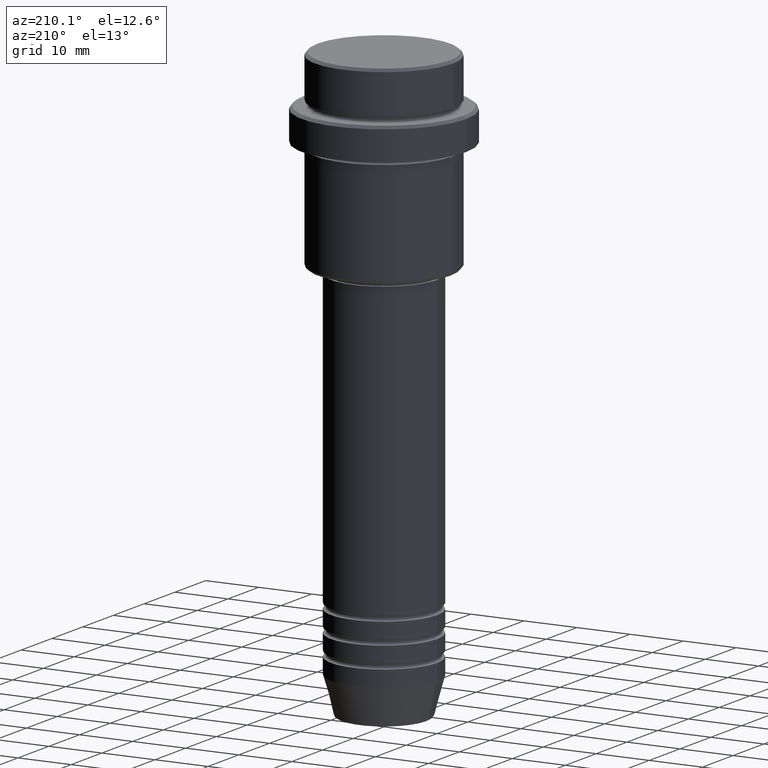
[diagram: clean part render]
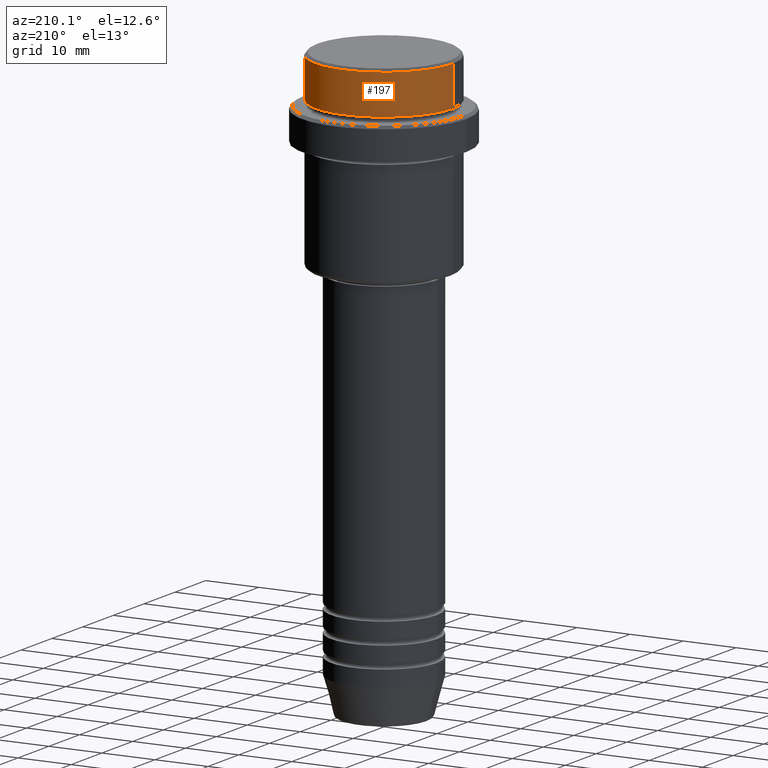
[diagram: same view with one face highlighted and labeled with its STEP entity id]
A machine part, auxiliary view. The second image highlights one B-rep face of the part: STEP entity #197.
In plain terms, the highlighted cylindrical surface (partial cylindrical patch) has radius 13 mm, axis along (-0, -0, 1).
Its self-contained STEP definition (entity closure, byte-faithful):
#12 = LINE ( 'NONE', #550, #1324 ) ;
#53 = ORIENTED_EDGE ( 'NONE', *, *, #1079, .T. ) ;
#68 = DIRECTION ( 'NONE',  ( 1.000000000000000000, 0.000000000000000000, 0.000000000000000000 ) ) ;
#91 = DIRECTION ( 'NONE',  ( -0.000000000000000000, -0.000000000000000000, 1.000000000000000000 ) ) ;
#100 = ORIENTED_EDGE ( 'NONE', *, *, #1237, .T. ) ;
#108 = AXIS2_PLACEMENT_3D ( 'NONE', #1002, #488, #499 ) ;
#115 = CARTESIAN_POINT ( 'NONE',  ( -12.99999999999999822, 1.592040838891558898E-15, 0.000000000000000000 ) ) ;
#147 = CARTESIAN_POINT ( 'NONE',  ( -12.99999999999999822, 1.592040838891558898E-15, -7.999999999999998224 ) ) ;
#167 = ORIENTED_EDGE ( 'NONE', *, *, #1266, .T. ) ;
#197 = ADVANCED_FACE ( 'NONE', ( #1273 ), #820, .T. ) ;
#259 = CARTESIAN_POINT ( 'NONE',  ( 12.99999999999999822, 0.000000000000000000, -0.4999999999999900080 ) ) ;
#286 = VERTEX_POINT ( 'NONE', #259 ) ;
#360 = ORIENTED_EDGE ( 'NONE', *, *, #1214, .F. ) ;
#362 = VERTEX_POINT ( 'NONE', #422 ) ;
#422 = CARTESIAN_POINT ( 'NONE',  ( 12.99999999999999822, 0.000000000000000000, -7.999999999999998224 ) ) ;
#445 = DIRECTION ( 'NONE',  ( -0.000000000000000000, -0.000000000000000000, 1.000000000000000000 ) ) ;
#488 = DIRECTION ( 'NONE',  ( 0.000000000000000000, 0.000000000000000000, -1.000000000000000000 ) ) ;
#499 = DIRECTION ( 'NONE',  ( 1.000000000000000000, 0.000000000000000000, 0.000000000000000000 ) ) ;
#550 = CARTESIAN_POINT ( 'NONE',  ( 12.99999999999999822, 0.000000000000000000, 0.000000000000000000 ) ) ;
#583 = VECTOR ( 'NONE', #445, 1000.000000000000000 ) ;
#630 = VERTEX_POINT ( 'NONE', #147 ) ;
#661 = VERTEX_POINT ( 'NONE', #1013 ) ;
#716 = DIRECTION ( 'NONE',  ( 1.000000000000000000, 0.000000000000000000, 0.000000000000000000 ) ) ;
#728 = CARTESIAN_POINT ( 'NONE',  ( 0.000000000000000000, 0.000000000000000000, -7.999999999999998224 ) ) ;
#787 = EDGE_LOOP ( 'NONE', ( #167, #100, #53, #360 ) ) ;
#794 = AXIS2_PLACEMENT_3D ( 'NONE', #728, #1195, #68 ) ;
#820 = CYLINDRICAL_SURFACE ( 'NONE', #1218, 12.99999999999999822 ) ;
#1002 = CARTESIAN_POINT ( 'NONE',  ( 0.000000000000000000, 0.000000000000000000, -0.4999999999999900080 ) ) ;
#1013 = CARTESIAN_POINT ( 'NONE',  ( -12.99999999999999822, 1.592040838891558898E-15, -0.4999999999999900080 ) ) ;
#1079 = EDGE_CURVE ( 'NONE', #661, #286, #1341, .T. ) ;
#1140 = DIRECTION ( 'NONE',  ( -0.000000000000000000, -0.000000000000000000, 1.000000000000000000 ) ) ;
#1195 = DIRECTION ( 'NONE',  ( -0.000000000000000000, -0.000000000000000000, 1.000000000000000000 ) ) ;
#1214 = EDGE_CURVE ( 'NONE', #362, #286, #12, .T. ) ;
#1218 = AXIS2_PLACEMENT_3D ( 'NONE', #1354, #1140, #716 ) ;
#1231 = CIRCLE ( 'NONE', #794, 12.99999999999999822 ) ;
#1237 = EDGE_CURVE ( 'NONE', #630, #661, #1303, .T. ) ;
#1266 = EDGE_CURVE ( 'NONE', #362, #630, #1231, .T. ) ;
#1273 = FACE_OUTER_BOUND ( 'NONE', #787, .T. ) ;
#1303 = LINE ( 'NONE', #115, #583 ) ;
#1324 = VECTOR ( 'NONE', #91, 1000.000000000000000 ) ;
#1341 = CIRCLE ( 'NONE', #108, 12.99999999999999822 ) ;
#1354 = CARTESIAN_POINT ( 'NONE',  ( 0.000000000000000000, 0.000000000000000000, 0.000000000000000000 ) ) ;